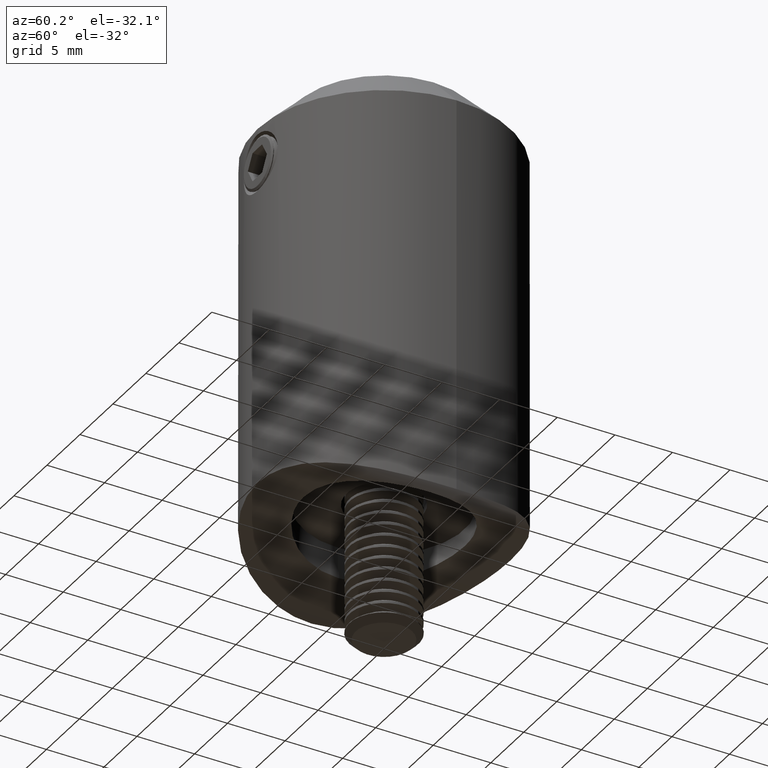
[diagram: clean part render]
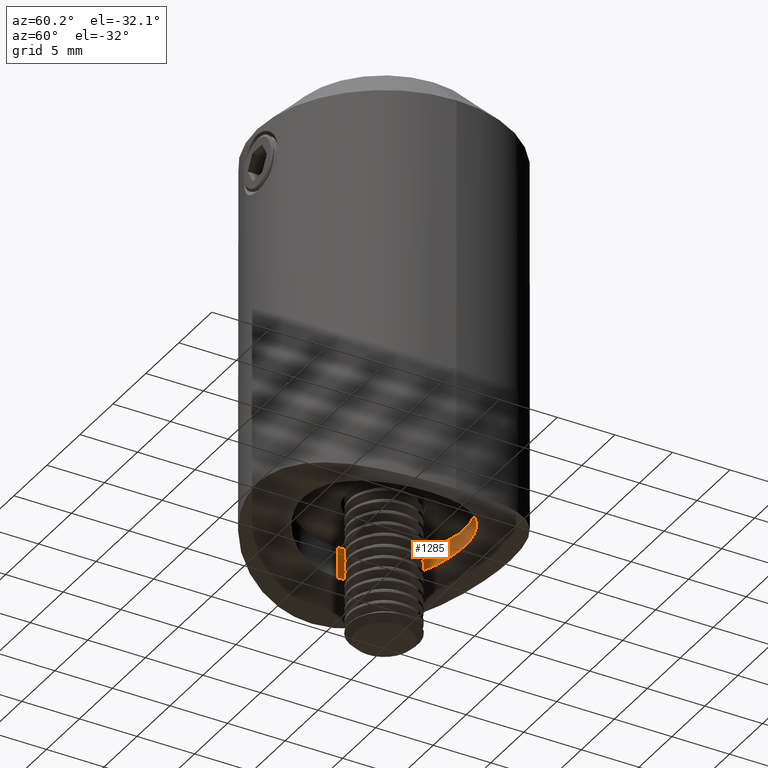
[diagram: same view with one face highlighted and labeled with its STEP entity id]
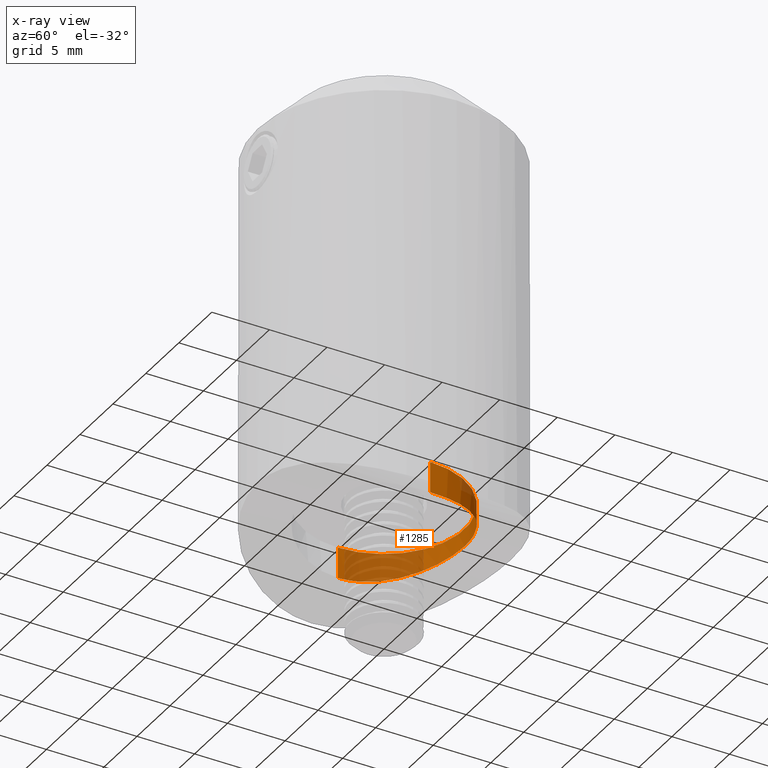
[diagram: x-ray of the same camera — body ghosted, the highlighted face saturated]
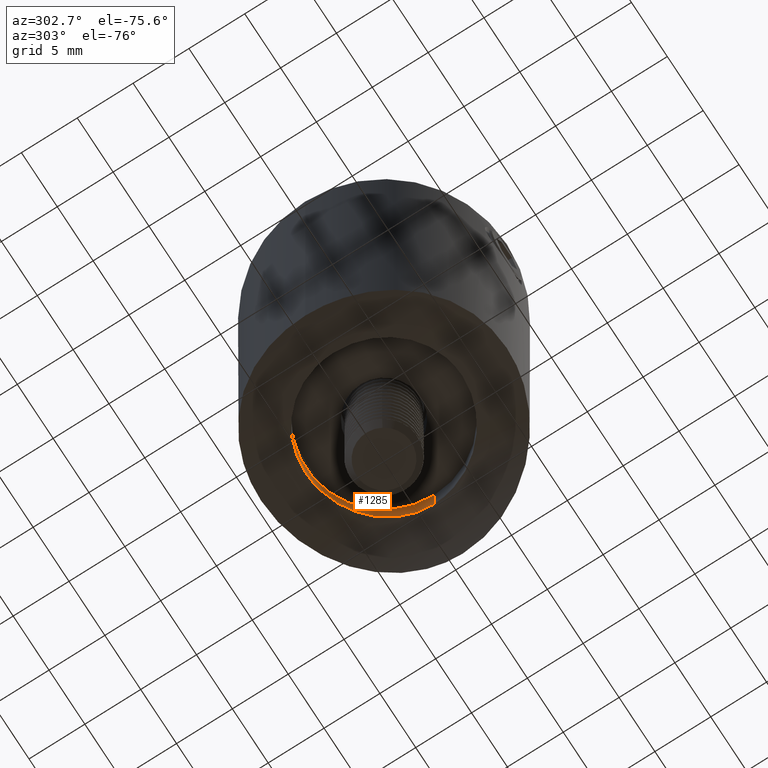
[diagram: same view with one face highlighted and labeled with its STEP entity id]
A machine part, auxiliary view. The second image highlights one B-rep face of the part: STEP entity #1285.
The next image is the same camera in x-ray: the body ghosted, the highlighted face saturated — about 49% of this face is hidden behind the body in this view.
A second angle (auxiliary view) of the same face is appended — the face is thin or edge-on in the first view.
In plain terms, the highlighted cylindrical surface (partial cylindrical patch) has radius 7 mm, axis along (-0, -0, -1).
Its self-contained STEP definition (entity closure, byte-faithful):
#793 = VERTEX_POINT ( 'NONE', #6517 ) ;
#895 = CARTESIAN_POINT ( 'NONE',  ( -6.999999999999999112, 2.527992270348815231E-16, -1.189003023337393383 ) ) ;
#1102 = LINE ( 'NONE', #4923, #5243 ) ;
#1184 = CARTESIAN_POINT ( 'NONE',  ( -6.999999999999998224, 0.4659799063984113587, -1.189003023337392051 ) ) ;
#1285 = ADVANCED_FACE ( 'NONE', ( #19780 ), #2207, .F. ) ;
#1297 = DIRECTION ( 'NONE',  ( -1.000000000000000000, 0.000000000000000000, 0.000000000000000000 ) ) ;
#1753 = DIRECTION ( 'NONE',  ( -0.000000000000000000, -0.000000000000000000, -1.000000000000000000 ) ) ;
#1875 = CARTESIAN_POINT ( 'NONE',  ( 5.273672153202382695, 4.625720765481955432, -0.6637192540195002710 ) ) ;
#1949 = CARTESIAN_POINT ( 'NONE',  ( 1.826520213803296322, 6.773018113092035719, -0.07403251448403024015 ) ) ;
#2016 = CARTESIAN_POINT ( 'NONE',  ( 4.084614689438332391, 5.689230933361928422, -0.3963306758089915061 ) ) ;
#2090 = CARTESIAN_POINT ( 'NONE',  ( 6.287574648990524651, 3.110529430206782298, -0.9530152778593052876 ) ) ;
#2207 = CYLINDRICAL_SURFACE ( 'NONE', #3548, 6.999999999999999112 ) ;
#2642 = CARTESIAN_POINT ( 'NONE',  ( -5.564252761578066142, 4.271566623904683446, -0.7415444747053616670 ) ) ;
#2720 = CARTESIAN_POINT ( 'NONE',  ( -6.549707608988700080, 2.480681616731140515, -1.036917832098768866 ) ) ;
#3130 = CIRCLE ( 'NONE', #19297, 6.999999999999999112 ) ;
#3532 = CARTESIAN_POINT ( 'NONE',  ( 6.772748689036362180, 1.828736942489868955, -1.110721450481014116 ) ) ;
#3548 = AXIS2_PLACEMENT_3D ( 'NONE', #4692, #6267, #1297 ) ;
#3600 = CARTESIAN_POINT ( 'NONE',  ( 4.618502629769597689, 5.265095213105437821, -0.5084126773116165454 ) ) ;
#3679 = CARTESIAN_POINT ( 'NONE',  ( 6.988746544508277481, 0.4587908495632376793, -1.185055671192279059 ) ) ;
#3820 = CARTESIAN_POINT ( 'NONE',  ( 6.638724809543078642, 2.266345341285844750, -1.065419840275183549 ) ) ;
#4019 = CARTESIAN_POINT ( 'NONE',  ( -0.4612724556698544753, 7.000000000000025757, 5.343930864227380839E-15 ) ) ;
#4692 = CARTESIAN_POINT ( 'NONE',  ( 0.000000000000000000, 0.000000000000000000, 0.000000000000000000 ) ) ;
#4909 = EDGE_CURVE ( 'NONE', #13902, #793, #1102, .T. ) ;
#4923 = CARTESIAN_POINT ( 'NONE',  ( 6.999999999999999112, 8.572527594031472204E-16, 0.000000000000000000 ) ) ;
#5243 = VECTOR ( 'NONE', #1753, 1000.000000000000000 ) ;
#5252 = CARTESIAN_POINT ( 'NONE',  ( 6.909151228715387560, 1.147706496086163819, -1.157396909084076997 ) ) ;
#5387 = CARTESIAN_POINT ( 'NONE',  ( 6.943461124619549452, 0.9172867152184761563, -1.169300502490041138 ) ) ;
#5872 = CARTESIAN_POINT ( 'NONE',  ( -5.270573634410196107, 4.628917774211481984, -0.6629627499619902276 ) ) ;
#5970 = VERTEX_POINT ( 'NONE', #11424 ) ;
#6267 = DIRECTION ( 'NONE',  ( -0.000000000000000000, -0.000000000000000000, -1.000000000000000000 ) ) ;
#6511 = DIRECTION ( 'NONE',  ( -0.000000000000000000, -0.000000000000000000, -1.000000000000000000 ) ) ;
#6517 = CARTESIAN_POINT ( 'NONE',  ( 6.999999999999999112, 8.560259022009927031E-16, -1.189003023337390053 ) ) ;
#6580 = CARTESIAN_POINT ( 'NONE',  ( 0.000000000000000000, 0.000000000000000000, 1.500000000000000000 ) ) ;
#6744 = B_SPLINE_CURVE_WITH_KNOTS ( 'NONE', 3,
 ( #18755, #4019, #15799, #20823, #14135, #17658, #10966, #11094, #10818, #17453, #15878, #5872, #2642, #14198, #12538, #2720, #9308, #7620, #19247, #12672, #1184, #895 ),
 .UNSPECIFIED., .F., .F.,
 ( 4, 2, 2, 2, 2, 2, 2, 2, 2, 2, 4 ),
 ( 0.03305684844175334897, 0.03443412118109677456, 0.03512275755076848388, 0.03581139392044020014, 0.03718866665978362573, 0.03856593939912704438, 0.03994321213847046997, 0.04132048487781389556, 0.04200912124748559795, 0.04269775761715731421, 0.04407503035650073286 ),
 .UNSPECIFIED. ) ;
#7025 = DIRECTION ( 'NONE',  ( -0.000000000000000000, -0.000000000000000000, -1.000000000000000000 ) ) ;
#7146 = EDGE_CURVE ( 'NONE', #11335, #13902, #3130, .T. ) ;
#7463 = ORIENTED_EDGE ( 'NONE', *, *, #13990, .T. ) ;
#7524 = ORIENTED_EDGE ( 'NONE', *, *, #9309, .F. ) ;
#7620 = CARTESIAN_POINT ( 'NONE',  ( -6.762973605274413380, 1.820830096373176943, -1.107533309468108129 ) ) ;
#7754 = EDGE_CURVE ( 'NONE', #9861, #5970, #6744, .T. ) ;
#8191 = DIRECTION ( 'NONE',  ( -1.000000000000000000, 0.000000000000000000, 0.000000000000000000 ) ) ;
#8391 = VECTOR ( 'NONE', #7025, 1000.000000000000000 ) ;
#8804 = CARTESIAN_POINT ( 'NONE',  ( -6.999999999999999112, 0.000000000000000000, 1.500000000000000000 ) ) ;
#9308 = CARTESIAN_POINT ( 'NONE',  ( -6.628393107060864153, 2.262219937089398059, -1.062735177933424202 ) ) ;
#9309 = EDGE_CURVE ( 'NONE', #793, #9861, #19754, .T. ) ;
#9861 = VERTEX_POINT ( 'NONE', #11753 ) ;
#10272 = CARTESIAN_POINT ( 'NONE',  ( 1.234568892304547547E-13, 7.000000000001502798, 4.969194373219468947E-13 ) ) ;
#10818 = CARTESIAN_POINT ( 'NONE',  ( -3.516292267065649124, 6.070117179547629860, -0.2900476510428263710 ) ) ;
#10966 = CARTESIAN_POINT ( 'NONE',  ( -2.479203503609689552, 6.550243124836104158, -0.1443899860780893663 ) ) ;
#11094 = CARTESIAN_POINT ( 'NONE',  ( -3.111598469892447483, 6.287010019815122419, -0.2252864800283883029 ) ) ;
#11335 = VERTEX_POINT ( 'NONE', #8804 ) ;
#11424 = CARTESIAN_POINT ( 'NONE',  ( -6.999999999999999112, 2.527992270348815231E-16, -1.189003023337393383 ) ) ;
#11753 = CARTESIAN_POINT ( 'NONE',  ( 1.234568892304547547E-13, 7.000000000001502798, 4.969194373219468947E-13 ) ) ;
#11911 = ORIENTED_EDGE ( 'NONE', *, *, #7146, .F. ) ;
#11922 = CARTESIAN_POINT ( 'NONE',  ( 6.999999999999999112, 8.560259022009927031E-16, -1.189003023337390053 ) ) ;
#12538 = CARTESIAN_POINT ( 'NONE',  ( -6.285472950323997665, 3.114905131472636590, -0.9523572018402707284 ) ) ;
#12672 = CARTESIAN_POINT ( 'NONE',  ( -6.953910075002651681, 0.9237542678262840035, -1.172714313319931145 ) ) ;
#13435 = CARTESIAN_POINT ( 'NONE',  ( 7.000000000000000888, 0.2294442535131136218, -1.189003023337393161 ) ) ;
#13571 = EDGE_LOOP ( 'NONE', ( #19056, #11911, #7463, #20641, #7524 ) ) ;
#13584 = CARTESIAN_POINT ( 'NONE',  ( 1.152649695809539576, 6.908247700515404155, -0.03016135509347627960 ) ) ;
#13723 = CARTESIAN_POINT ( 'NONE',  ( 4.266754254514259159, 5.553971756845633045, -0.4330271679955290387 ) ) ;
#13902 = VERTEX_POINT ( 'NONE', #16588 ) ;
#13990 = EDGE_CURVE ( 'NONE', #11335, #5970, #17196, .T. ) ;
#14135 = CARTESIAN_POINT ( 'NONE',  ( -1.822676172940772332, 6.762469454070766162, -0.07733630568493565782 ) ) ;
#14198 = CARTESIAN_POINT ( 'NONE',  ( -6.070581554644749467, 3.515000683583511254, -0.8860306472714498671 ) ) ;
#15100 = CARTESIAN_POINT ( 'NONE',  ( 3.513163255014252417, 6.058860334226778832, -0.2921274286381189134 ) ) ;
#15240 = CARTESIAN_POINT ( 'NONE',  ( 5.561376535874225091, 4.275270782646583001, -0.7407616932461246195 ) ) ;
#15308 = CARTESIAN_POINT ( 'NONE',  ( 0.9250556887413384777, 6.942479057796590247, -0.01893430942314807894 ) ) ;
#15391 = CARTESIAN_POINT ( 'NONE',  ( 6.067834059466591157, 3.519693035692336824, -0.8852090610536980098 ) ) ;
#15799 = CARTESIAN_POINT ( 'NONE',  ( -0.9180499056559041637, 6.954848520280366486, -0.01503779756878777414 ) ) ;
#15878 = CARTESIAN_POINT ( 'NONE',  ( -4.628975734345864623, 5.270522729956494068, -0.5089045941007310780 ) ) ;
#16588 = CARTESIAN_POINT ( 'NONE',  ( 6.999999999999999112, 8.572527594031472204E-16, 1.500000000000000000 ) ) ;
#16831 = CARTESIAN_POINT ( 'NONE',  ( 2.902349045095493185, 6.374126939744439113, -0.1985145186200282241 ) ) ;
#16907 = CARTESIAN_POINT ( 'NONE',  ( 2.263964290507725963, 6.639801396538605793, -0.1168656194571521811 ) ) ;
#17085 = CARTESIAN_POINT ( 'NONE',  ( -6.999999999999999112, 0.000000000000000000, 0.000000000000000000 ) ) ;
#17196 = LINE ( 'NONE', #17085, #8391 ) ;
#17453 = CARTESIAN_POINT ( 'NONE',  ( -4.278747599975805116, 5.559042440615675318, -0.4326521308380206765 ) ) ;
#17658 = CARTESIAN_POINT ( 'NONE',  ( -2.263648735176774451, 6.627898305826574799, -0.1200340517762142761 ) ) ;
#18416 = CARTESIAN_POINT ( 'NONE',  ( 3.707818996253859911, 5.941675190156113118, -0.3258817479041670184 ) ) ;
#18491 = CARTESIAN_POINT ( 'NONE',  ( 0.2305994703423783765, 6.999999999999998224, -3.605372211294949932E-15 ) ) ;
#18625 = CARTESIAN_POINT ( 'NONE',  ( 3.110970358798805346, 6.274867969345984342, -0.2285118567288113023 ) ) ;
#18698 = CARTESIAN_POINT ( 'NONE',  ( 4.788955426456770859, 5.110590334621682551, -0.5473121086453209827 ) ) ;
#18755 = CARTESIAN_POINT ( 'NONE',  ( 1.234568892304547547E-13, 7.000000000001502798, 4.969194373219468947E-13 ) ) ;
#19056 = ORIENTED_EDGE ( 'NONE', *, *, #4909, .F. ) ;
#19247 = CARTESIAN_POINT ( 'NONE',  ( -6.818993920813479548, 1.598082828750267526, -1.126545358740816738 ) ) ;
#19297 = AXIS2_PLACEMENT_3D ( 'NONE', #6580, #6511, #8191 ) ;
#19754 = B_SPLINE_CURVE_WITH_KNOTS ( 'NONE', 3,
 ( #11922, #13435, #3679, #5387, #5252, #3532, #3820, #2090, #15391, #15240, #1875, #18698, #3600, #13723, #2016, #18416, #15100, #18625, #16831, #16907, #1949, #13584, #15308, #20134, #18491, #10272 ),
 .UNSPECIFIED., .F., .F.,
 ( 4, 2, 2, 2, 2, 2, 2, 2, 2, 2, 2, 2, 4 ),
 ( 0.02204042254230317507, 0.02272894916101881116, 0.02341747577973444724, 0.02479452901716571941, 0.02617158225459699158, 0.02754863549202826375, 0.02823716211074389984, 0.02892568872945953246, 0.02961421534817516854, 0.03030274196689080463, 0.03167979520432207680, 0.03236832182303771288, 0.03305684844175334897 ),
 .UNSPECIFIED. ) ;
#19780 = FACE_OUTER_BOUND ( 'NONE', #13571, .T. ) ;
#20134 = CARTESIAN_POINT ( 'NONE',  ( 0.4636896020162566412, 6.988471610316445037, -0.003814876992922188511 ) ) ;
#20641 = ORIENTED_EDGE ( 'NONE', *, *, #7754, .F. ) ;
#20823 = CARTESIAN_POINT ( 'NONE',  ( -1.596508993016138689, 6.819409243295846856, -0.05898491504849612960 ) ) ;